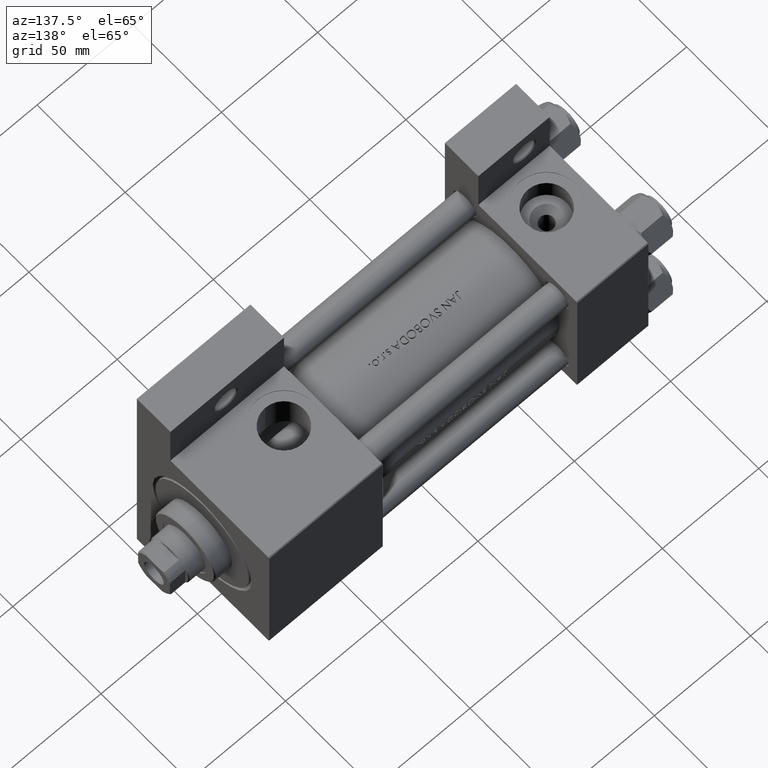
[diagram: clean part render]
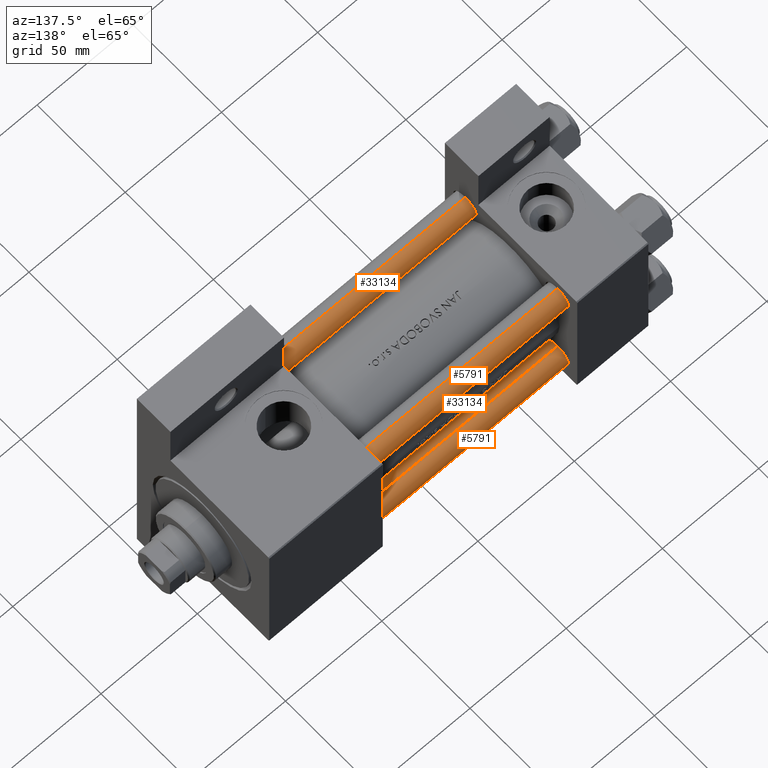
[diagram: same view with one multi-face feature highlighted, each face labeled with its STEP entity id]
A machine part, auxiliary view. The highlighted faces form ONE feature: a constant-radius fillet chain: 4 tangent blend faces with common blend radius 6 mm. The faces share edges in the B-rep.
Their STEP definitions:
[1] entity #5791 (Cylinder):
#1283 = ORIENTED_EDGE ( 'NONE', *, *, #21426, .T. ) ;
#5791 = ADVANCED_FACE ( 'NONE', ( #6626 ), #21074, .T. ) ;
#6113 = CARTESIAN_POINT ( 'NONE',  ( 6.000000000000000888, 7.347880794884119736E-16, 167.0000000000000000 ) ) ;
#6626 = FACE_OUTER_BOUND ( 'NONE', #28868, .T. ) ;
#7246 = DIRECTION ( 'NONE',  ( 0.000000000000000000, 0.000000000000000000, -1.000000000000000000 ) ) ;
#8565 = DIRECTION ( 'NONE',  ( 1.000000000000000000, 0.000000000000000000, 0.000000000000000000 ) ) ;
#10666 = DIRECTION ( 'NONE',  ( -0.000000000000000000, -0.000000000000000000, -1.000000000000000000 ) ) ;
#10995 = DIRECTION ( 'NONE',  ( 1.000000000000000000, 0.000000000000000000, 0.000000000000000000 ) ) ;
#11106 = CIRCLE ( 'NONE', #42922, 6.000000000000000888 ) ;
#11246 = ORIENTED_EDGE ( 'NONE', *, *, #13110, .F. ) ;
#13110 = EDGE_CURVE ( 'NONE', #24757, #16361, #45520, .T. ) ;
#13260 = CIRCLE ( 'NONE', #24375, 6.000000000000000888 ) ;
#14656 = CARTESIAN_POINT ( 'NONE',  ( -6.000000000000000888, 0.000000000000000000, 167.0000000000000000 ) ) ;
#15225 = VERTEX_POINT ( 'NONE', #48341 ) ;
#16361 = VERTEX_POINT ( 'NONE', #43245 ) ;
#16846 = DIRECTION ( 'NONE',  ( -1.000000000000000000, 0.000000000000000000, 0.000000000000000000 ) ) ;
#19873 = VECTOR ( 'NONE', #36242, 1000.000000000000000 ) ;
#20488 = DIRECTION ( 'NONE',  ( -0.000000000000000000, -0.000000000000000000, 1.000000000000000000 ) ) ;
#21074 = CYLINDRICAL_SURFACE ( 'NONE', #48802, 6.000000000000000888 ) ;
#21426 = EDGE_CURVE ( 'NONE', #15225, #16361, #13260, .T. ) ;
#22186 = CARTESIAN_POINT ( 'NONE',  ( 6.000000000000000888, 7.347880794884119736E-16, 166.5000000000000853 ) ) ;
#24375 = AXIS2_PLACEMENT_3D ( 'NONE', #47406, #20488, #8565 ) ;
#24757 = VERTEX_POINT ( 'NONE', #28144 ) ;
#26419 = CARTESIAN_POINT ( 'NONE',  ( 0.000000000000000000, 0.000000000000000000, 166.5000000000000853 ) ) ;
#28144 = CARTESIAN_POINT ( 'NONE',  ( -6.000000000000000888, 0.000000000000000000, 166.5000000000000853 ) ) ;
#28868 = EDGE_LOOP ( 'NONE', ( #37885, #36872, #1283, #11246 ) ) ;
#32788 = CARTESIAN_POINT ( 'NONE',  ( 0.000000000000000000, 0.000000000000000000, 167.0000000000000000 ) ) ;
#35050 = EDGE_CURVE ( 'NONE', #24757, #43722, #11106, .T. ) ;
#35881 = EDGE_CURVE ( 'NONE', #43722, #15225, #40222, .T. ) ;
#36242 = DIRECTION ( 'NONE',  ( -0.000000000000000000, -0.000000000000000000, -1.000000000000000000 ) ) ;
#36280 = DIRECTION ( 'NONE',  ( -0.000000000000000000, -0.000000000000000000, -1.000000000000000000 ) ) ;
#36872 = ORIENTED_EDGE ( 'NONE', *, *, #35881, .T. ) ;
#37885 = ORIENTED_EDGE ( 'NONE', *, *, #35050, .T. ) ;
#40222 = LINE ( 'NONE', #6113, #19873 ) ;
#42922 = AXIS2_PLACEMENT_3D ( 'NONE', #26419, #7246, #10995 ) ;
#43245 = CARTESIAN_POINT ( 'NONE',  ( -6.000000000000000888, 0.000000000000000000, 0.5000000000001669775 ) ) ;
#43722 = VERTEX_POINT ( 'NONE', #22186 ) ;
#45520 = LINE ( 'NONE', #14656, #48126 ) ;
#47406 = CARTESIAN_POINT ( 'NONE',  ( 0.000000000000000000, 0.000000000000000000, 0.5000000000001669775 ) ) ;
#48126 = VECTOR ( 'NONE', #10666, 1000.000000000000000 ) ;
#48341 = CARTESIAN_POINT ( 'NONE',  ( 6.000000000000000888, 7.347880794884119736E-16, 0.5000000000001669775 ) ) ;
#48802 = AXIS2_PLACEMENT_3D ( 'NONE', #32788, #36280, #16846 ) ;
[2] entity #33134 (Cylinder):
#1730 = CIRCLE ( 'NONE', #26337, 6.000000000000000888 ) ;
#2961 = CIRCLE ( 'NONE', #42734, 6.000000000000000888 ) ;
#3988 = DIRECTION ( 'NONE',  ( -0.000000000000000000, -0.000000000000000000, -1.000000000000000000 ) ) ;
#6113 = CARTESIAN_POINT ( 'NONE',  ( 6.000000000000000888, 7.347880794884119736E-16, 167.0000000000000000 ) ) ;
#9971 = DIRECTION ( 'NONE',  ( 1.000000000000000000, 0.000000000000000000, 0.000000000000000000 ) ) ;
#10666 = DIRECTION ( 'NONE',  ( -0.000000000000000000, -0.000000000000000000, -1.000000000000000000 ) ) ;
#11438 = CARTESIAN_POINT ( 'NONE',  ( 0.000000000000000000, 0.000000000000000000, 167.0000000000000000 ) ) ;
#13110 = EDGE_CURVE ( 'NONE', #24757, #16361, #45520, .T. ) ;
#14656 = CARTESIAN_POINT ( 'NONE',  ( -6.000000000000000888, 0.000000000000000000, 167.0000000000000000 ) ) ;
#14958 = DIRECTION ( 'NONE',  ( 0.000000000000000000, 0.000000000000000000, -1.000000000000000000 ) ) ;
#15225 = VERTEX_POINT ( 'NONE', #48341 ) ;
#16361 = VERTEX_POINT ( 'NONE', #43245 ) ;
#17930 = DIRECTION ( 'NONE',  ( -0.000000000000000000, -0.000000000000000000, 1.000000000000000000 ) ) ;
#18843 = EDGE_CURVE ( 'NONE', #43722, #24757, #2961, .T. ) ;
#19150 = DIRECTION ( 'NONE',  ( -1.000000000000000000, 0.000000000000000000, 0.000000000000000000 ) ) ;
#19873 = VECTOR ( 'NONE', #36242, 1000.000000000000000 ) ;
#22055 = EDGE_LOOP ( 'NONE', ( #26120, #24906, #31853, #46594 ) ) ;
#22186 = CARTESIAN_POINT ( 'NONE',  ( 6.000000000000000888, 7.347880794884119736E-16, 166.5000000000000853 ) ) ;
#24757 = VERTEX_POINT ( 'NONE', #28144 ) ;
#24906 = ORIENTED_EDGE ( 'NONE', *, *, #18843, .T. ) ;
#26120 = ORIENTED_EDGE ( 'NONE', *, *, #35881, .F. ) ;
#26158 = DIRECTION ( 'NONE',  ( 1.000000000000000000, 0.000000000000000000, 0.000000000000000000 ) ) ;
#26337 = AXIS2_PLACEMENT_3D ( 'NONE', #28885, #17930, #9971 ) ;
#28144 = CARTESIAN_POINT ( 'NONE',  ( -6.000000000000000888, 0.000000000000000000, 166.5000000000000853 ) ) ;
#28544 = AXIS2_PLACEMENT_3D ( 'NONE', #11438, #3988, #19150 ) ;
#28885 = CARTESIAN_POINT ( 'NONE',  ( 0.000000000000000000, 0.000000000000000000, 0.5000000000001669775 ) ) ;
#30152 = CARTESIAN_POINT ( 'NONE',  ( 0.000000000000000000, 0.000000000000000000, 166.5000000000000853 ) ) ;
#30365 = FACE_OUTER_BOUND ( 'NONE', #22055, .T. ) ;
#31853 = ORIENTED_EDGE ( 'NONE', *, *, #13110, .T. ) ;
#33134 = ADVANCED_FACE ( 'NONE', ( #30365 ), #45558, .T. ) ;
#35881 = EDGE_CURVE ( 'NONE', #43722, #15225, #40222, .T. ) ;
#36242 = DIRECTION ( 'NONE',  ( -0.000000000000000000, -0.000000000000000000, -1.000000000000000000 ) ) ;
#38641 = EDGE_CURVE ( 'NONE', #16361, #15225, #1730, .T. ) ;
#40222 = LINE ( 'NONE', #6113, #19873 ) ;
#42734 = AXIS2_PLACEMENT_3D ( 'NONE', #30152, #14958, #26158 ) ;
#43245 = CARTESIAN_POINT ( 'NONE',  ( -6.000000000000000888, 0.000000000000000000, 0.5000000000001669775 ) ) ;
#43722 = VERTEX_POINT ( 'NONE', #22186 ) ;
#45520 = LINE ( 'NONE', #14656, #48126 ) ;
#45558 = CYLINDRICAL_SURFACE ( 'NONE', #28544, 6.000000000000000888 ) ;
#46594 = ORIENTED_EDGE ( 'NONE', *, *, #38641, .T. ) ;
#48126 = VECTOR ( 'NONE', #10666, 1000.000000000000000 ) ;
#48341 = CARTESIAN_POINT ( 'NONE',  ( 6.000000000000000888, 7.347880794884119736E-16, 0.5000000000001669775 ) ) ;
[3] entity #5791 (Cylinder):
#1283 = ORIENTED_EDGE ( 'NONE', *, *, #21426, .T. ) ;
#5791 = ADVANCED_FACE ( 'NONE', ( #6626 ), #21074, .T. ) ;
#6113 = CARTESIAN_POINT ( 'NONE',  ( 6.000000000000000888, 7.347880794884119736E-16, 167.0000000000000000 ) ) ;
#6626 = FACE_OUTER_BOUND ( 'NONE', #28868, .T. ) ;
#7246 = DIRECTION ( 'NONE',  ( 0.000000000000000000, 0.000000000000000000, -1.000000000000000000 ) ) ;
#8565 = DIRECTION ( 'NONE',  ( 1.000000000000000000, 0.000000000000000000, 0.000000000000000000 ) ) ;
#10666 = DIRECTION ( 'NONE',  ( -0.000000000000000000, -0.000000000000000000, -1.000000000000000000 ) ) ;
#10995 = DIRECTION ( 'NONE',  ( 1.000000000000000000, 0.000000000000000000, 0.000000000000000000 ) ) ;
#11106 = CIRCLE ( 'NONE', #42922, 6.000000000000000888 ) ;
#11246 = ORIENTED_EDGE ( 'NONE', *, *, #13110, .F. ) ;
#13110 = EDGE_CURVE ( 'NONE', #24757, #16361, #45520, .T. ) ;
#13260 = CIRCLE ( 'NONE', #24375, 6.000000000000000888 ) ;
#14656 = CARTESIAN_POINT ( 'NONE',  ( -6.000000000000000888, 0.000000000000000000, 167.0000000000000000 ) ) ;
#15225 = VERTEX_POINT ( 'NONE', #48341 ) ;
#16361 = VERTEX_POINT ( 'NONE', #43245 ) ;
#16846 = DIRECTION ( 'NONE',  ( -1.000000000000000000, 0.000000000000000000, 0.000000000000000000 ) ) ;
#19873 = VECTOR ( 'NONE', #36242, 1000.000000000000000 ) ;
#20488 = DIRECTION ( 'NONE',  ( -0.000000000000000000, -0.000000000000000000, 1.000000000000000000 ) ) ;
#21074 = CYLINDRICAL_SURFACE ( 'NONE', #48802, 6.000000000000000888 ) ;
#21426 = EDGE_CURVE ( 'NONE', #15225, #16361, #13260, .T. ) ;
#22186 = CARTESIAN_POINT ( 'NONE',  ( 6.000000000000000888, 7.347880794884119736E-16, 166.5000000000000853 ) ) ;
#24375 = AXIS2_PLACEMENT_3D ( 'NONE', #47406, #20488, #8565 ) ;
#24757 = VERTEX_POINT ( 'NONE', #28144 ) ;
#26419 = CARTESIAN_POINT ( 'NONE',  ( 0.000000000000000000, 0.000000000000000000, 166.5000000000000853 ) ) ;
#28144 = CARTESIAN_POINT ( 'NONE',  ( -6.000000000000000888, 0.000000000000000000, 166.5000000000000853 ) ) ;
#28868 = EDGE_LOOP ( 'NONE', ( #37885, #36872, #1283, #11246 ) ) ;
#32788 = CARTESIAN_POINT ( 'NONE',  ( 0.000000000000000000, 0.000000000000000000, 167.0000000000000000 ) ) ;
#35050 = EDGE_CURVE ( 'NONE', #24757, #43722, #11106, .T. ) ;
#35881 = EDGE_CURVE ( 'NONE', #43722, #15225, #40222, .T. ) ;
#36242 = DIRECTION ( 'NONE',  ( -0.000000000000000000, -0.000000000000000000, -1.000000000000000000 ) ) ;
#36280 = DIRECTION ( 'NONE',  ( -0.000000000000000000, -0.000000000000000000, -1.000000000000000000 ) ) ;
#36872 = ORIENTED_EDGE ( 'NONE', *, *, #35881, .T. ) ;
#37885 = ORIENTED_EDGE ( 'NONE', *, *, #35050, .T. ) ;
#40222 = LINE ( 'NONE', #6113, #19873 ) ;
#42922 = AXIS2_PLACEMENT_3D ( 'NONE', #26419, #7246, #10995 ) ;
#43245 = CARTESIAN_POINT ( 'NONE',  ( -6.000000000000000888, 0.000000000000000000, 0.5000000000001669775 ) ) ;
#43722 = VERTEX_POINT ( 'NONE', #22186 ) ;
#45520 = LINE ( 'NONE', #14656, #48126 ) ;
#47406 = CARTESIAN_POINT ( 'NONE',  ( 0.000000000000000000, 0.000000000000000000, 0.5000000000001669775 ) ) ;
#48126 = VECTOR ( 'NONE', #10666, 1000.000000000000000 ) ;
#48341 = CARTESIAN_POINT ( 'NONE',  ( 6.000000000000000888, 7.347880794884119736E-16, 0.5000000000001669775 ) ) ;
#48802 = AXIS2_PLACEMENT_3D ( 'NONE', #32788, #36280, #16846 ) ;
[4] entity #33134 (Cylinder):
#1730 = CIRCLE ( 'NONE', #26337, 6.000000000000000888 ) ;
#2961 = CIRCLE ( 'NONE', #42734, 6.000000000000000888 ) ;
#3988 = DIRECTION ( 'NONE',  ( -0.000000000000000000, -0.000000000000000000, -1.000000000000000000 ) ) ;
#6113 = CARTESIAN_POINT ( 'NONE',  ( 6.000000000000000888, 7.347880794884119736E-16, 167.0000000000000000 ) ) ;
#9971 = DIRECTION ( 'NONE',  ( 1.000000000000000000, 0.000000000000000000, 0.000000000000000000 ) ) ;
#10666 = DIRECTION ( 'NONE',  ( -0.000000000000000000, -0.000000000000000000, -1.000000000000000000 ) ) ;
#11438 = CARTESIAN_POINT ( 'NONE',  ( 0.000000000000000000, 0.000000000000000000, 167.0000000000000000 ) ) ;
#13110 = EDGE_CURVE ( 'NONE', #24757, #16361, #45520, .T. ) ;
#14656 = CARTESIAN_POINT ( 'NONE',  ( -6.000000000000000888, 0.000000000000000000, 167.0000000000000000 ) ) ;
#14958 = DIRECTION ( 'NONE',  ( 0.000000000000000000, 0.000000000000000000, -1.000000000000000000 ) ) ;
#15225 = VERTEX_POINT ( 'NONE', #48341 ) ;
#16361 = VERTEX_POINT ( 'NONE', #43245 ) ;
#17930 = DIRECTION ( 'NONE',  ( -0.000000000000000000, -0.000000000000000000, 1.000000000000000000 ) ) ;
#18843 = EDGE_CURVE ( 'NONE', #43722, #24757, #2961, .T. ) ;
#19150 = DIRECTION ( 'NONE',  ( -1.000000000000000000, 0.000000000000000000, 0.000000000000000000 ) ) ;
#19873 = VECTOR ( 'NONE', #36242, 1000.000000000000000 ) ;
#22055 = EDGE_LOOP ( 'NONE', ( #26120, #24906, #31853, #46594 ) ) ;
#22186 = CARTESIAN_POINT ( 'NONE',  ( 6.000000000000000888, 7.347880794884119736E-16, 166.5000000000000853 ) ) ;
#24757 = VERTEX_POINT ( 'NONE', #28144 ) ;
#24906 = ORIENTED_EDGE ( 'NONE', *, *, #18843, .T. ) ;
#26120 = ORIENTED_EDGE ( 'NONE', *, *, #35881, .F. ) ;
#26158 = DIRECTION ( 'NONE',  ( 1.000000000000000000, 0.000000000000000000, 0.000000000000000000 ) ) ;
#26337 = AXIS2_PLACEMENT_3D ( 'NONE', #28885, #17930, #9971 ) ;
#28144 = CARTESIAN_POINT ( 'NONE',  ( -6.000000000000000888, 0.000000000000000000, 166.5000000000000853 ) ) ;
#28544 = AXIS2_PLACEMENT_3D ( 'NONE', #11438, #3988, #19150 ) ;
#28885 = CARTESIAN_POINT ( 'NONE',  ( 0.000000000000000000, 0.000000000000000000, 0.5000000000001669775 ) ) ;
#30152 = CARTESIAN_POINT ( 'NONE',  ( 0.000000000000000000, 0.000000000000000000, 166.5000000000000853 ) ) ;
#30365 = FACE_OUTER_BOUND ( 'NONE', #22055, .T. ) ;
#31853 = ORIENTED_EDGE ( 'NONE', *, *, #13110, .T. ) ;
#33134 = ADVANCED_FACE ( 'NONE', ( #30365 ), #45558, .T. ) ;
#35881 = EDGE_CURVE ( 'NONE', #43722, #15225, #40222, .T. ) ;
#36242 = DIRECTION ( 'NONE',  ( -0.000000000000000000, -0.000000000000000000, -1.000000000000000000 ) ) ;
#38641 = EDGE_CURVE ( 'NONE', #16361, #15225, #1730, .T. ) ;
#40222 = LINE ( 'NONE', #6113, #19873 ) ;
#42734 = AXIS2_PLACEMENT_3D ( 'NONE', #30152, #14958, #26158 ) ;
#43245 = CARTESIAN_POINT ( 'NONE',  ( -6.000000000000000888, 0.000000000000000000, 0.5000000000001669775 ) ) ;
#43722 = VERTEX_POINT ( 'NONE', #22186 ) ;
#45520 = LINE ( 'NONE', #14656, #48126 ) ;
#45558 = CYLINDRICAL_SURFACE ( 'NONE', #28544, 6.000000000000000888 ) ;
#46594 = ORIENTED_EDGE ( 'NONE', *, *, #38641, .T. ) ;
#48126 = VECTOR ( 'NONE', #10666, 1000.000000000000000 ) ;
#48341 = CARTESIAN_POINT ( 'NONE',  ( 6.000000000000000888, 7.347880794884119736E-16, 0.5000000000001669775 ) ) ;